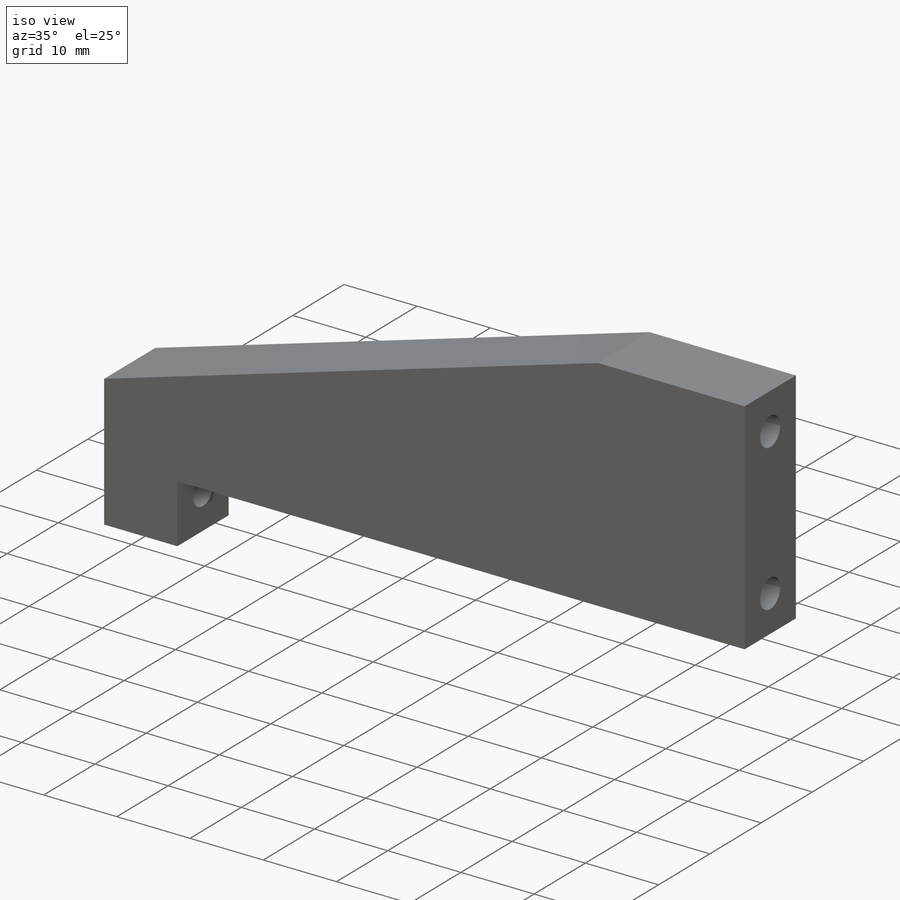
[diagram: iso view]
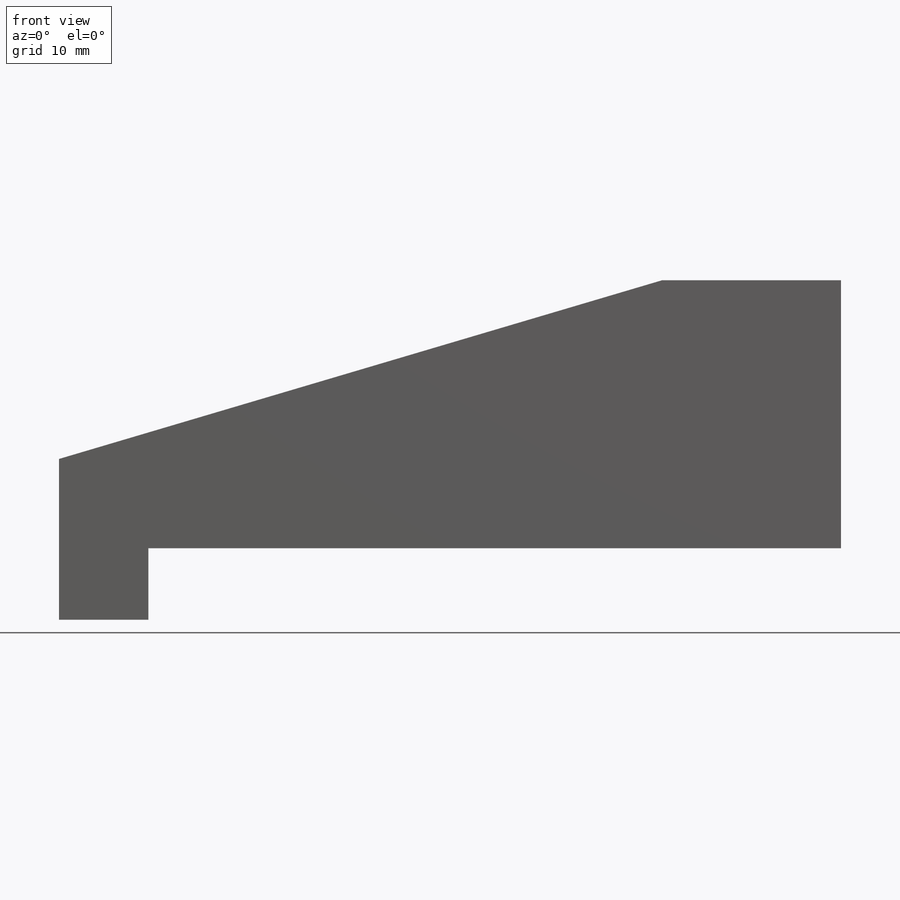
[diagram: front view]
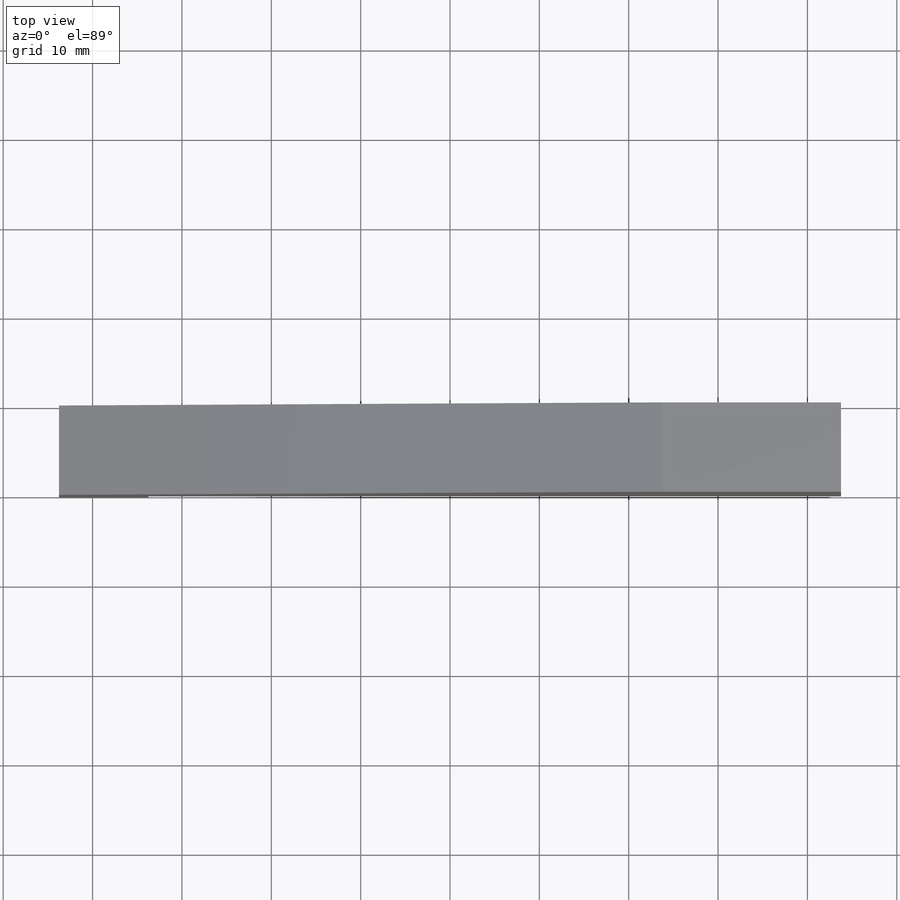
[diagram: top view]
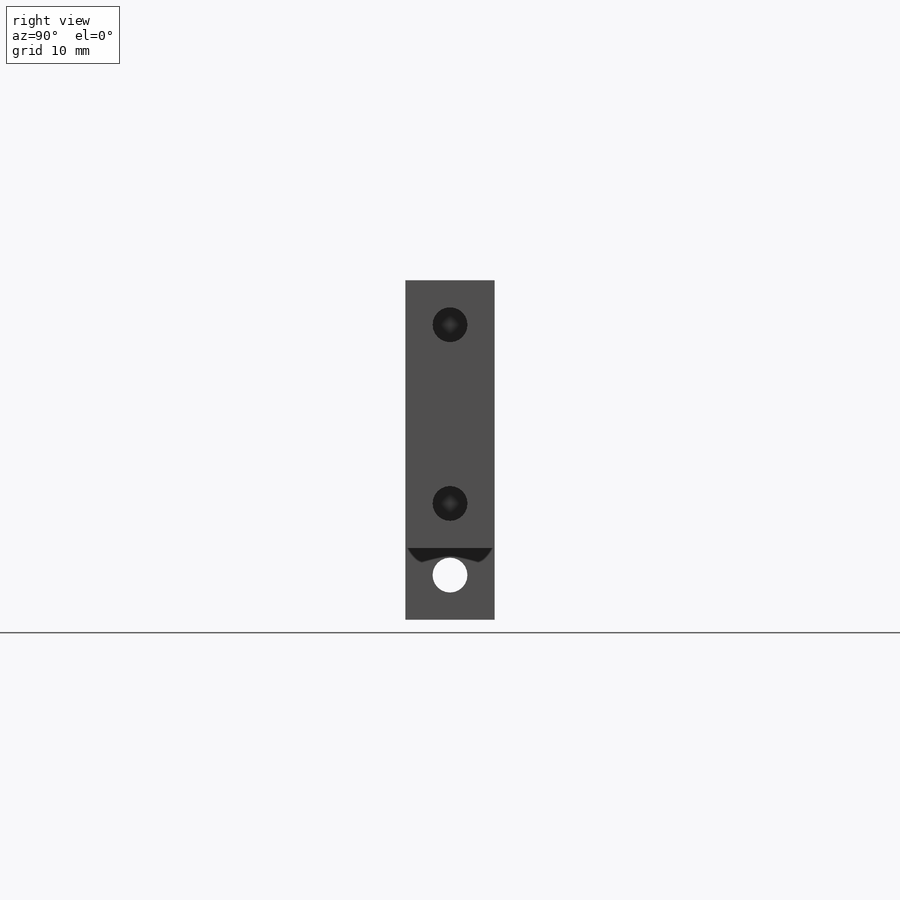
[diagram: right view]
SOLIDWORKS PART (.sldprt)
format: sldprt  version: not decoded by parser v0  size: 161,792 bytes
history: native  units: mm
features: sketch x6, extrude x2, hole x2, material x1 (+14 scaffold rows collapsed)
feature tree (25):
  scaffold x14  (default folders/planes/origin — collapsed)
  material  "PLA Black"
  sketch  "Sketch1"  dims[D1=30.0mm D2=87.5mm D3=10.0mm D4=20.0mm]
  extrude  "Extrude1"  Depth=10mm
  hole  "Ø4.0 (4) Diameter Hole1"  Diameter=3.9mm Depth=15mm
  sketch  "3DSketch1"  dims[D1=20.0mm]
  sketch  "Sketch2"  dims[hole-wizard template sketch: 47 standard entries collapsed; hole parameters kept: c15.Hole Depth=15.0mm c15.D3=~14.816244mm c15.Drill Angle=180.0deg]
  sketch  "Sketch3"  dims[D1=8.0mm D2=10.0mm]
  extrude  "Extrude2"  [1 undecoded]
  hole  "Ø4.0 (4) Diameter Hole2"  Diameter=3.9mm Depth=15mm
  sketch  "3DSketch2"  dims[D1=8.0mm]
  sketch  "Sketch4"  dims[hole-wizard template sketch: 47 standard entries collapsed; hole parameters kept: c15.Hole Depth=15.0mm c15.D3=~14.816244mm c15.Drill Angle=180.0deg]
decode coverage: 9 of 10 modeling features carry decoded parameters
note: ~ marks probable driven/reference dimensions
note: 1 parameter value undecoded
note: suppression state not decoded; provenance and decode notes live in map.json
